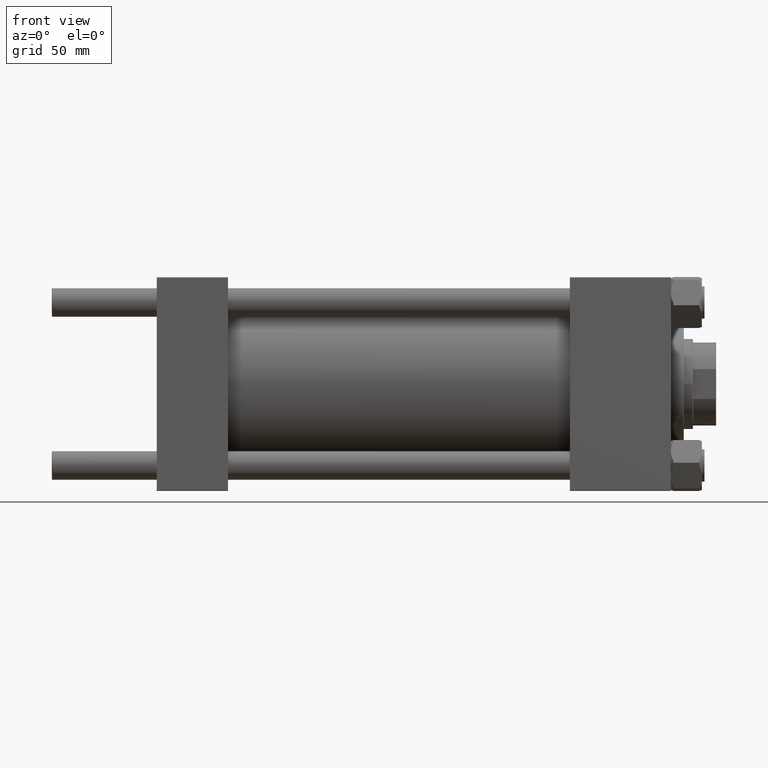
[diagram: clean part render]
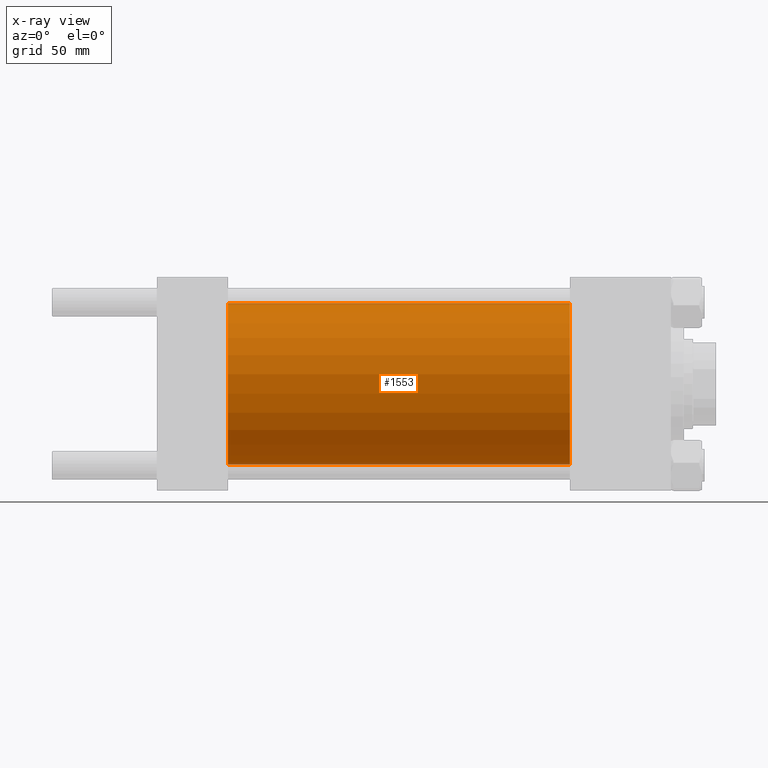
[diagram: x-ray — body ghosted, one internal face saturated and labeled with its STEP entity id]
A machine part, front view, then the same camera in x-ray: the body is ghosted and one INTERNAL B-rep face — a face not visible from any outside direction — is saturated and labeled: STEP entity #1553.
In plain terms, the highlighted cylindrical surface (partial cylindrical patch) has radius 62.5 mm, axis along (-1, -0, -0).
Its self-contained STEP definition (entity closure, byte-faithful):
#1553 = ADVANCED_FACE ( 'NONE', ( #2722 ), #18016, .F. ) ;
#2722 = FACE_OUTER_BOUND ( 'NONE', #32620, .T. ) ;
#3201 = ORIENTED_EDGE ( 'NONE', *, *, #43004, .T. ) ;
#4354 = DIRECTION ( 'NONE',  ( 1.000000000000000000, 0.000000000000000000, 0.000000000000000000 ) ) ;
#4989 = CARTESIAN_POINT ( 'NONE',  ( 319.0000000000000000, 0.000000000000000000, 62.50000000000000000 ) ) ;
#5357 = AXIS2_PLACEMENT_3D ( 'NONE', #35246, #4354, #23980 ) ;
#5514 = CARTESIAN_POINT ( 'NONE',  ( 55.00000000000000000, 0.000000000000000000, 62.50000000000000000 ) ) ;
#5749 = CARTESIAN_POINT ( 'NONE',  ( 319.0000000000000000, 7.654042494670957804E-15, -62.50000000000000000 ) ) ;
#6279 = ORIENTED_EDGE ( 'NONE', *, *, #9031, .F. ) ;
#9031 = EDGE_CURVE ( 'NONE', #29824, #25244, #25862, .T. ) ;
#9107 = VECTOR ( 'NONE', #33044, 1000.000000000000000 ) ;
#9484 = EDGE_CURVE ( 'NONE', #29824, #29192, #42866, .T. ) ;
#10630 = CARTESIAN_POINT ( 'NONE',  ( 319.0000000000000000, 0.000000000000000000, 0.000000000000000000 ) ) ;
#11867 = ORIENTED_EDGE ( 'NONE', *, *, #41053, .F. ) ;
#13118 = DIRECTION ( 'NONE',  ( -1.000000000000000000, -0.000000000000000000, -0.000000000000000000 ) ) ;
#18016 = CYLINDRICAL_SURFACE ( 'NONE', #34566, 62.50000000000000000 ) ;
#18889 = CIRCLE ( 'NONE', #38485, 62.50000000000000000 ) ;
#21184 = DIRECTION ( 'NONE',  ( 1.000000000000000000, 0.000000000000000000, 0.000000000000000000 ) ) ;
#22603 = DIRECTION ( 'NONE',  ( 0.000000000000000000, 0.000000000000000000, 1.000000000000000000 ) ) ;
#23980 = DIRECTION ( 'NONE',  ( 0.000000000000000000, 0.000000000000000000, -1.000000000000000000 ) ) ;
#25027 = DIRECTION ( 'NONE',  ( 0.000000000000000000, 0.000000000000000000, -1.000000000000000000 ) ) ;
#25244 = VERTEX_POINT ( 'NONE', #5514 ) ;
#25862 = LINE ( 'NONE', #48071, #28189 ) ;
#28189 = VECTOR ( 'NONE', #13118, 1000.000000000000000 ) ;
#28611 = CARTESIAN_POINT ( 'NONE',  ( 55.00000000000000000, 0.000000000000000000, 0.000000000000000000 ) ) ;
#29192 = VERTEX_POINT ( 'NONE', #34561 ) ;
#29824 = VERTEX_POINT ( 'NONE', #4989 ) ;
#32539 = LINE ( 'NONE', #5749, #9107 ) ;
#32620 = EDGE_LOOP ( 'NONE', ( #46411, #3201, #11867, #6279 ) ) ;
#33044 = DIRECTION ( 'NONE',  ( -1.000000000000000000, -0.000000000000000000, -0.000000000000000000 ) ) ;
#33865 = VERTEX_POINT ( 'NONE', #38068 ) ;
#34561 = CARTESIAN_POINT ( 'NONE',  ( 319.0000000000000000, 7.654042494670957804E-15, -62.50000000000000000 ) ) ;
#34566 = AXIS2_PLACEMENT_3D ( 'NONE', #10630, #49655, #22603 ) ;
#35246 = CARTESIAN_POINT ( 'NONE',  ( 319.0000000000000000, 0.000000000000000000, 0.000000000000000000 ) ) ;
#38068 = CARTESIAN_POINT ( 'NONE',  ( 55.00000000000000000, 7.654042494670957804E-15, -62.50000000000000000 ) ) ;
#38485 = AXIS2_PLACEMENT_3D ( 'NONE', #28611, #21184, #25027 ) ;
#41053 = EDGE_CURVE ( 'NONE', #25244, #33865, #18889, .T. ) ;
#42866 = CIRCLE ( 'NONE', #5357, 62.50000000000000000 ) ;
#43004 = EDGE_CURVE ( 'NONE', #29192, #33865, #32539, .T. ) ;
#46411 = ORIENTED_EDGE ( 'NONE', *, *, #9484, .T. ) ;
#48071 = CARTESIAN_POINT ( 'NONE',  ( 319.0000000000000000, 0.000000000000000000, 62.50000000000000000 ) ) ;
#49655 = DIRECTION ( 'NONE',  ( -1.000000000000000000, -0.000000000000000000, -0.000000000000000000 ) ) ;